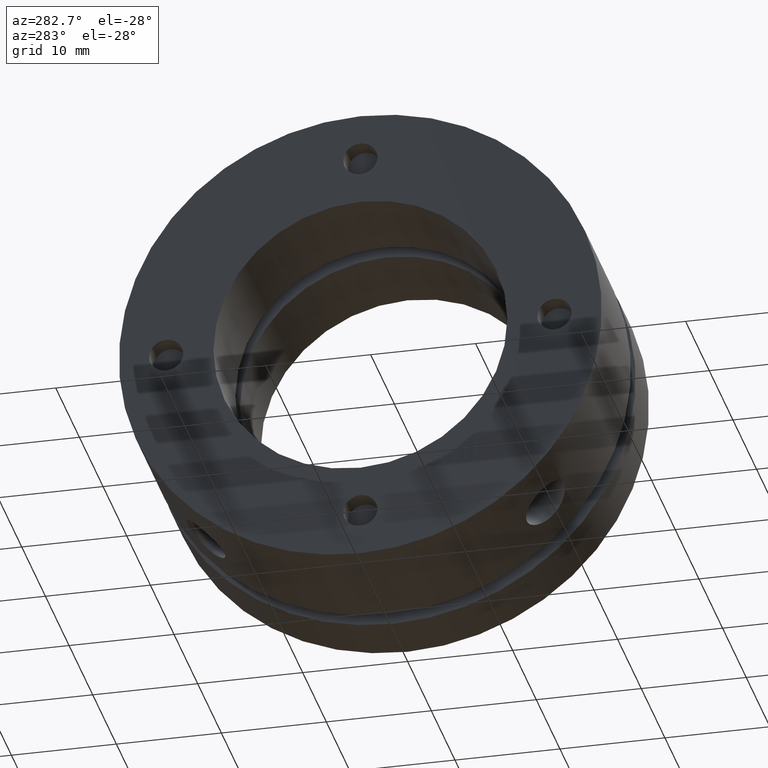
[diagram: clean part render]
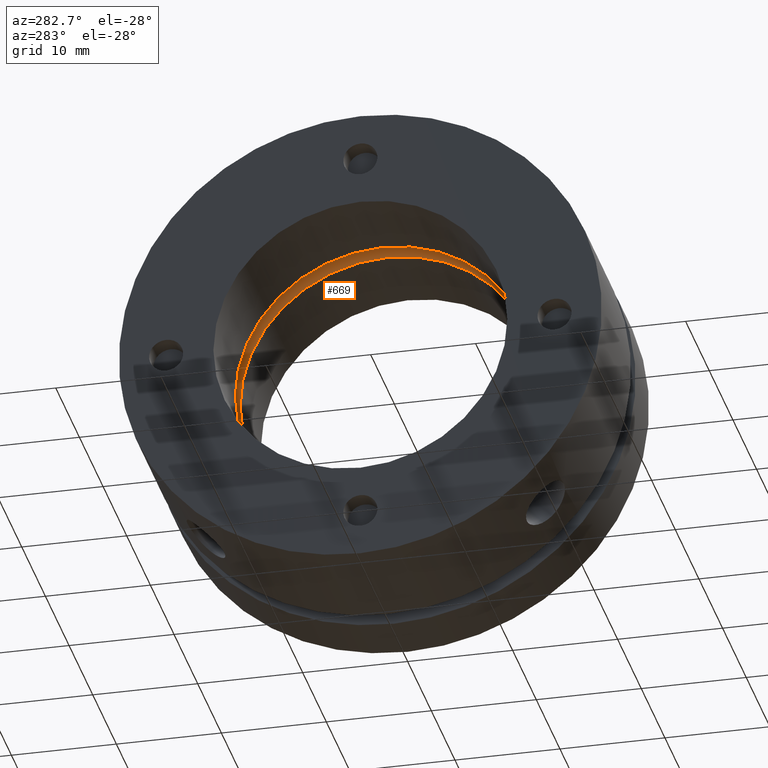
[diagram: same view with one face highlighted and labeled with its STEP entity id]
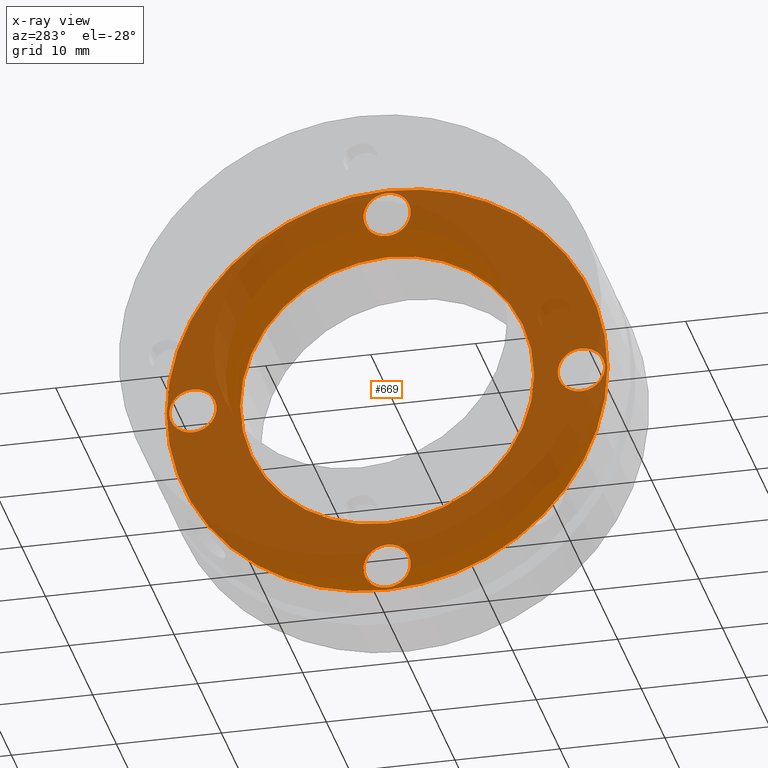
[diagram: x-ray of the same camera — body ghosted, the highlighted face saturated]
A machine part, auxiliary view. The second image highlights one B-rep face of the part: STEP entity #669.
The next image is the same camera in x-ray: the body ghosted, the highlighted face saturated — about 79% of this face is hidden behind the body in this view.
In plain terms, the highlighted planar face has unit normal (1, 0, 0).
Its self-contained STEP definition (entity closure, byte-faithful):
#38 = FACE_BOUND ( 'NONE', #1806, .T. ) ;
#40 = FACE_BOUND ( 'NONE', #1814, .T. ) ;
#42 = FACE_BOUND ( 'NONE', #1797, .T. ) ;
#44 = FACE_BOUND ( 'NONE', #1807, .T. ) ;
#46 = FACE_BOUND ( 'NONE', #1813, .T. ) ;
#47 = FACE_OUTER_BOUND ( 'NONE', #1815, .T. ) ;
#177 = CIRCLE ( 'NONE', #2299, 2.250000000000000400 ) ;
#207 = CIRCLE ( 'NONE', #2309, 21.00000000000000700 ) ;
#219 = CIRCLE ( 'NONE', #2315, 2.250000000000001800 ) ;
#225 = CIRCLE ( 'NONE', #2316, 2.250000000000000400 ) ;
#227 = CIRCLE ( 'NONE', #2317, 2.250000000000001800 ) ;
#249 = CIRCLE ( 'NONE', #1624, 14.00000000000000200 ) ;
#300 = CIRCLE ( 'NONE', #2278, 2.250000000000001800 ) ;
#320 = CIRCLE ( 'NONE', #2283, 2.250000000000000400 ) ;
#327 = CIRCLE ( 'NONE', #1640, 14.00000000000000200 ) ;
#346 = CIRCLE ( 'NONE', #2290, 2.250000000000001800 ) ;
#371 = CIRCLE ( 'NONE', #1644, 21.00000000000000700 ) ;
#378 = CIRCLE ( 'NONE', #2291, 2.250000000000000400 ) ;
#669 = ADVANCED_FACE ( 'NONE', ( #38, #46, #42, #40, #44, #47 ), #3085, .F. ) ;
#846 = CARTESIAN_POINT ( 'NONE',  ( 11.30000000000001000, -2.265597000000000100E-015, -18.50000000000001100 ) ) ;
#847 = DIRECTION ( 'NONE',  ( 1.000000000000000000, 0.0000000000000000000, 0.0000000000000000000 ) ) ;
#848 = DIRECTION ( 'NONE',  ( 0.0000000000000000000, 0.0000000000000000000, -1.000000000000000000 ) ) ;
#865 = CARTESIAN_POINT ( 'NONE',  ( 11.30000000000001000, 18.50000000000001100, -3.398395000000000300E-015 ) ) ;
#866 = DIRECTION ( 'NONE',  ( 1.000000000000000000, 0.0000000000000000000, 0.0000000000000000000 ) ) ;
#867 = DIRECTION ( 'NONE',  ( 0.0000000000000000000, 0.0000000000000000000, -1.000000000000000000 ) ) ;
#902 = CARTESIAN_POINT ( 'NONE',  ( 11.30000000000001000, 0.0000000000000000000, 18.50000000000001100 ) ) ;
#903 = DIRECTION ( 'NONE',  ( 1.000000000000000000, 0.0000000000000000000, 0.0000000000000000000 ) ) ;
#904 = DIRECTION ( 'NONE',  ( 0.0000000000000000000, 0.0000000000000000000, -1.000000000000000000 ) ) ;
#912 = CARTESIAN_POINT ( 'NONE',  ( 11.30000000000001000, -18.50000000000001100, 1.132798000000000200E-015 ) ) ;
#913 = DIRECTION ( 'NONE',  ( 1.000000000000000000, 0.0000000000000000000, 0.0000000000000000000 ) ) ;
#914 = DIRECTION ( 'NONE',  ( 0.0000000000000000000, 0.0000000000000000000, -1.000000000000000000 ) ) ;
#948 = CARTESIAN_POINT ( 'NONE',  ( 11.30000000000001000, 18.50000000000001100, -3.398395000000000300E-015 ) ) ;
#949 = DIRECTION ( 'NONE',  ( 1.000000000000000000, 0.0000000000000000000, 0.0000000000000000000 ) ) ;
#950 = DIRECTION ( 'NONE',  ( 0.0000000000000000000, 0.0000000000000000000, -1.000000000000000000 ) ) ;
#982 = CARTESIAN_POINT ( 'NONE',  ( 11.30000000000000800, 0.0000000000000000000, 0.0000000000000000000 ) ) ;
#983 = DIRECTION ( 'NONE',  ( 1.000000000000000000, -0.0000000000000000000, -0.0000000000000000000 ) ) ;
#984 = DIRECTION ( 'NONE',  ( 0.0000000000000000000, 0.0000000000000000000, 1.000000000000000000 ) ) ;
#1002 = CARTESIAN_POINT ( 'NONE',  ( 11.30000000000001000, -2.265597000000000100E-015, -18.50000000000001100 ) ) ;
#1003 = DIRECTION ( 'NONE',  ( 1.000000000000000000, 0.0000000000000000000, 0.0000000000000000000 ) ) ;
#1004 = DIRECTION ( 'NONE',  ( 0.0000000000000000000, 0.0000000000000000000, -1.000000000000000000 ) ) ;
#1007 = CARTESIAN_POINT ( 'NONE',  ( 11.30000000000001000, -18.50000000000001100, 1.132798000000000200E-015 ) ) ;
#1008 = DIRECTION ( 'NONE',  ( 1.000000000000000000, 0.0000000000000000000, 0.0000000000000000000 ) ) ;
#1009 = DIRECTION ( 'NONE',  ( 0.0000000000000000000, 0.0000000000000000000, -1.000000000000000000 ) ) ;
#1011 = CARTESIAN_POINT ( 'NONE',  ( 11.30000000000001000, 0.0000000000000000000, 18.50000000000001100 ) ) ;
#1012 = DIRECTION ( 'NONE',  ( 1.000000000000000000, 0.0000000000000000000, 0.0000000000000000000 ) ) ;
#1013 = DIRECTION ( 'NONE',  ( 0.0000000000000000000, 0.0000000000000000000, -1.000000000000000000 ) ) ;
#1030 = CARTESIAN_POINT ( 'NONE',  ( 11.30000000000001000, 0.0000000000000000000, 0.0000000000000000000 ) ) ;
#1031 = DIRECTION ( 'NONE',  ( -1.000000000000000000, -0.0000000000000000000, -0.0000000000000000000 ) ) ;
#1032 = DIRECTION ( 'NONE',  ( 0.0000000000000000000, 0.0000000000000000000, -1.000000000000000000 ) ) ;
#1161 = CARTESIAN_POINT ( 'NONE',  ( 11.30000000000001000, 0.0000000000000000000, 0.0000000000000000000 ) ) ;
#1162 = DIRECTION ( 'NONE',  ( -1.000000000000000000, -0.0000000000000000000, -0.0000000000000000000 ) ) ;
#1163 = DIRECTION ( 'NONE',  ( 0.0000000000000000000, 0.0000000000000000000, -1.000000000000000000 ) ) ;
#1191 = CARTESIAN_POINT ( 'NONE',  ( 11.30000000000000800, 0.0000000000000000000, 0.0000000000000000000 ) ) ;
#1192 = DIRECTION ( 'NONE',  ( 1.000000000000000000, -0.0000000000000000000, -0.0000000000000000000 ) ) ;
#1193 = DIRECTION ( 'NONE',  ( 0.0000000000000000000, 0.0000000000000000000, 1.000000000000000000 ) ) ;
#1429 = ORIENTED_EDGE ( 'NONE', *, *, #2699, .F. ) ;
#1431 = ORIENTED_EDGE ( 'NONE', *, *, #2359, .T. ) ;
#1432 = ORIENTED_EDGE ( 'NONE', *, *, #2400, .T. ) ;
#1433 = ORIENTED_EDGE ( 'NONE', *, *, #2391, .F. ) ;
#1436 = ORIENTED_EDGE ( 'NONE', *, *, #2408, .F. ) ;
#1437 = ORIENTED_EDGE ( 'NONE', *, *, #2338, .T. ) ;
#1438 = ORIENTED_EDGE ( 'NONE', *, *, #2398, .T. ) ;
#1439 = ORIENTED_EDGE ( 'NONE', *, *, #2399, .T. ) ;
#1440 = ORIENTED_EDGE ( 'NONE', *, *, #2345, .T. ) ;
#1441 = ORIENTED_EDGE ( 'NONE', *, *, #2379, .T. ) ;
#1442 = ORIENTED_EDGE ( 'NONE', *, *, #2364, .T. ) ;
#1553 = VERTEX_POINT ( 'NONE', #3432 ) ;
#1554 = VERTEX_POINT ( 'NONE', #3429 ) ;
#1562 = VERTEX_POINT ( 'NONE', #3438 ) ;
#1565 = VERTEX_POINT ( 'NONE', #3441 ) ;
#1570 = VERTEX_POINT ( 'NONE', #3446 ) ;
#1587 = VERTEX_POINT ( 'NONE', #3463 ) ;
#1589 = VERTEX_POINT ( 'NONE', #3465 ) ;
#1595 = VERTEX_POINT ( 'NONE', #3471 ) ;
#1597 = VERTEX_POINT ( 'NONE', #3473 ) ;
#1598 = VERTEX_POINT ( 'NONE', #3474 ) ;
#1600 = VERTEX_POINT ( 'NONE', #3476 ) ;
#1616 = VERTEX_POINT ( 'NONE', #3492 ) ;
#1624 = AXIS2_PLACEMENT_3D ( 'NONE', #1030, #1031, #1032 ) ;
#1640 = AXIS2_PLACEMENT_3D ( 'NONE', #1161, #1162, #1163 ) ;
#1644 = AXIS2_PLACEMENT_3D ( 'NONE', #1191, #1192, #1193 ) ;
#1710 = ORIENTED_EDGE ( 'NONE', *, *, #2686, .F. ) ;
#1797 = EDGE_LOOP ( 'NONE', ( #1439, #1442 ) ) ;
#1806 = EDGE_LOOP ( 'NONE', ( #1710, #1436 ) ) ;
#1807 = EDGE_LOOP ( 'NONE', ( #1441, #1440 ) ) ;
#1813 = EDGE_LOOP ( 'NONE', ( #1432, #1431 ) ) ;
#1814 = EDGE_LOOP ( 'NONE', ( #1438, #1437 ) ) ;
#1815 = EDGE_LOOP ( 'NONE', ( #1429, #1433 ) ) ;
#2278 = AXIS2_PLACEMENT_3D ( 'NONE', #846, #847, #848 ) ;
#2283 = AXIS2_PLACEMENT_3D ( 'NONE', #865, #866, #867 ) ;
#2290 = AXIS2_PLACEMENT_3D ( 'NONE', #902, #903, #904 ) ;
#2291 = AXIS2_PLACEMENT_3D ( 'NONE', #912, #913, #914 ) ;
#2299 = AXIS2_PLACEMENT_3D ( 'NONE', #948, #949, #950 ) ;
#2309 = AXIS2_PLACEMENT_3D ( 'NONE', #982, #983, #984 ) ;
#2315 = AXIS2_PLACEMENT_3D ( 'NONE', #1002, #1003, #1004 ) ;
#2316 = AXIS2_PLACEMENT_3D ( 'NONE', #1007, #1008, #1009 ) ;
#2317 = AXIS2_PLACEMENT_3D ( 'NONE', #1011, #1012, #1013 ) ;
#2338 = EDGE_CURVE ( 'NONE', #1554, #1553, #300, .T. ) ;
#2345 = EDGE_CURVE ( 'NONE', #1597, #1598, #320, .T. ) ;
#2359 = EDGE_CURVE ( 'NONE', #1562, #1570, #346, .T. ) ;
#2364 = EDGE_CURVE ( 'NONE', #1565, #1589, #378, .T. ) ;
#2379 = EDGE_CURVE ( 'NONE', #1598, #1597, #177, .T. ) ;
#2391 = EDGE_CURVE ( 'NONE', #1595, #1616, #207, .T. ) ;
#2398 = EDGE_CURVE ( 'NONE', #1553, #1554, #219, .T. ) ;
#2399 = EDGE_CURVE ( 'NONE', #1589, #1565, #225, .T. ) ;
#2400 = EDGE_CURVE ( 'NONE', #1570, #1562, #227, .T. ) ;
#2408 = EDGE_CURVE ( 'NONE', #1600, #1587, #249, .T. ) ;
#2686 = EDGE_CURVE ( 'NONE', #1587, #1600, #327, .T. ) ;
#2699 = EDGE_CURVE ( 'NONE', #1616, #1595, #371, .T. ) ;
#2715 = AXIS2_PLACEMENT_3D ( 'NONE', #3087, #3083, #3089 ) ;
#3083 = DIRECTION ( 'NONE',  ( 1.000000000000000000, -0.0000000000000000000, 0.0000000000000000000 ) ) ;
#3085 = PLANE ( 'NONE',  #2715 ) ;
#3087 = CARTESIAN_POINT ( 'NONE',  ( 11.30000000000001000, 10.50000000000000500, 0.0000000000000000000 ) ) ;
#3089 = DIRECTION ( 'NONE',  ( 0.0000000000000000000, 0.0000000000000000000, -1.000000000000000000 ) ) ;
#3429 = CARTESIAN_POINT ( 'NONE',  ( 11.30000000000001000, -1.990051470191845600E-015, -16.25000000000000700 ) ) ;
#3432 = CARTESIAN_POINT ( 'NONE',  ( 11.30000000000001000, -2.265597000000000100E-015, -20.75000000000001100 ) ) ;
#3438 = CARTESIAN_POINT ( 'NONE',  ( 11.30000000000001000, 2.755455298081542800E-016, 20.75000000000001100 ) ) ;
#3441 = CARTESIAN_POINT ( 'NONE',  ( 11.30000000000001000, -18.50000000000001100, 2.250000000000001800 ) ) ;
#3446 = CARTESIAN_POINT ( 'NONE',  ( 11.30000000000001000, 0.0000000000000000000, 16.25000000000000700 ) ) ;
#3463 = CARTESIAN_POINT ( 'NONE',  ( 11.30000000000001000, 0.0000000000000000000, -14.00000000000000200 ) ) ;
#3465 = CARTESIAN_POINT ( 'NONE',  ( 11.30000000000001000, -18.50000000000001100, -2.249999999999999100 ) ) ;
#3471 = CARTESIAN_POINT ( 'NONE',  ( 11.30000000000000800, 2.571758278209442400E-015, -21.00000000000000700 ) ) ;
#3473 = CARTESIAN_POINT ( 'NONE',  ( 11.30000000000001000, 18.50000000000001100, 2.249999999999996900 ) ) ;
#3474 = CARTESIAN_POINT ( 'NONE',  ( 11.30000000000001000, 18.50000000000001100, -2.250000000000003600 ) ) ;
#3476 = CARTESIAN_POINT ( 'NONE',  ( 11.30000000000001000, 1.714505518806294800E-015, 14.00000000000000200 ) ) ;
#3492 = CARTESIAN_POINT ( 'NONE',  ( 11.30000000000000800, 0.0000000000000000000, 21.00000000000000700 ) ) ;